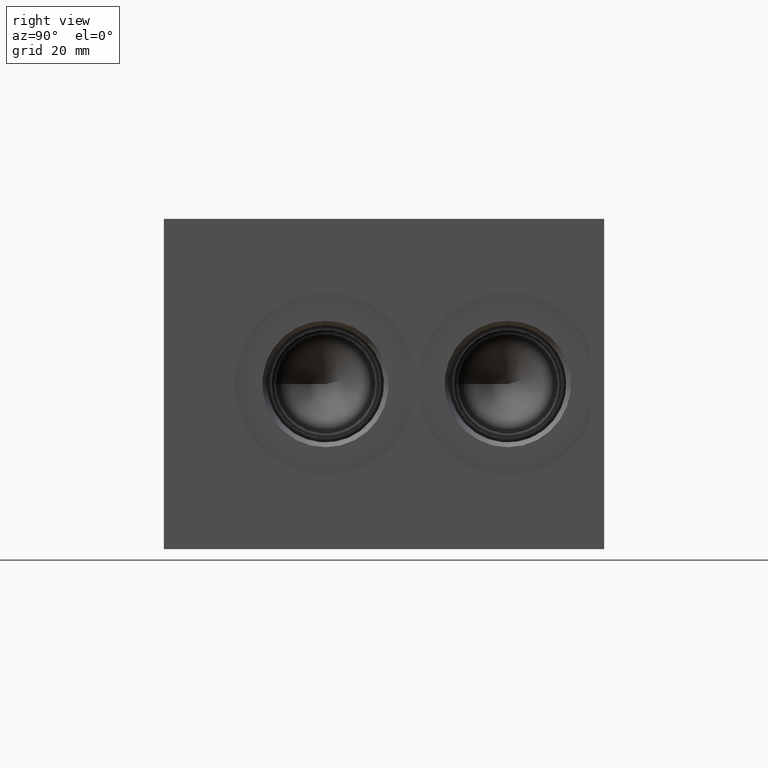
[diagram: clean part render]
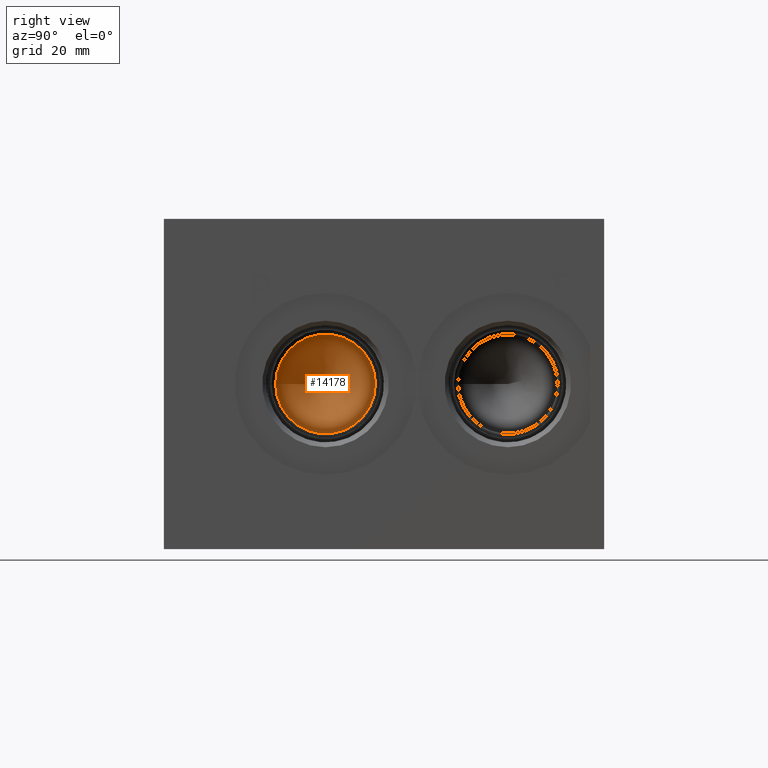
[diagram: same view with one face highlighted and labeled with its STEP entity id]
A machine part, right view. The second image highlights one B-rep face of the part: STEP entity #14178.
In plain terms, the highlighted conical surface has half-angle 60 deg.
Its self-contained STEP definition (entity closure, byte-faithful):
#97=CONICAL_SURFACE('',#14809,5.7531,1.0471975511966);
#231=CIRCLE('',#14810,11.5062);
#232=CIRCLE('',#14811,11.5062);
#1531=FACE_OUTER_BOUND('',#2340,.T.);
#2340=EDGE_LOOP('',(#12150,#12151,#12152,#12153));
#3690=LINE('',#24229,#4975);
#4975=VECTOR('',#17293,5.7531);
#6650=VERTEX_POINT('',#24225);
#6651=VERTEX_POINT('',#24226);
#6652=VERTEX_POINT('',#24228);
#8550=EDGE_CURVE('',#6650,#6651,#231,.T.);
#8551=EDGE_CURVE('',#6651,#6652,#3690,.T.);
#8552=EDGE_CURVE('',#6651,#6650,#232,.T.);
#12150=ORIENTED_EDGE('',*,*,#8550,.T.);
#12151=ORIENTED_EDGE('',*,*,#8551,.T.);
#12152=ORIENTED_EDGE('',*,*,#8551,.F.);
#12153=ORIENTED_EDGE('',*,*,#8552,.T.);
#14178=ADVANCED_FACE('',(#1531),#97,.F.);
#14809=AXIS2_PLACEMENT_3D('',#24224,#17289,#17290);
#14810=AXIS2_PLACEMENT_3D('',#24227,#17291,#17292);
#14811=AXIS2_PLACEMENT_3D('',#24230,#17294,#17295);
#17289=DIRECTION('center_axis',(1.,0.,0.));
#17290=DIRECTION('ref_axis',(0.,1.,0.));
#17291=DIRECTION('center_axis',(1.,0.,0.));
#17292=DIRECTION('ref_axis',(0.,1.,0.));
#17293=DIRECTION('',(-0.5,0.866025403784439,1.06057523872491E-16));
#17294=DIRECTION('center_axis',(1.,0.,0.));
#17295=DIRECTION('ref_axis',(0.,1.,0.));
#24224=CARTESIAN_POINT('Origin',(76.9364561663252,37.3126,38.1));
#24225=CARTESIAN_POINT('',(80.25801,48.8188,38.1));
#24226=CARTESIAN_POINT('',(80.25801,25.8064,38.1));
#24227=CARTESIAN_POINT('Origin',(80.25801,37.3126,38.1));
#24228=CARTESIAN_POINT('',(73.6149023326503,37.3126,38.1));
#24229=CARTESIAN_POINT('',(76.9364561663252,31.5595,38.1));
#24230=CARTESIAN_POINT('Origin',(80.25801,37.3126,38.1));